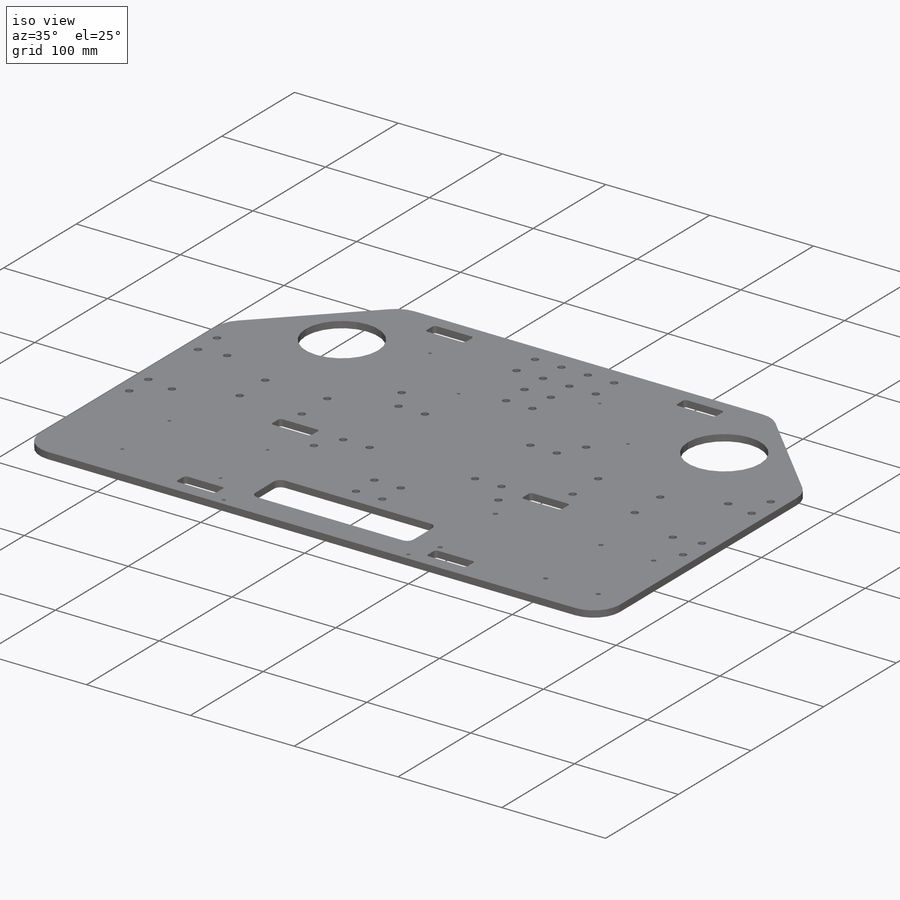
[diagram: iso view]
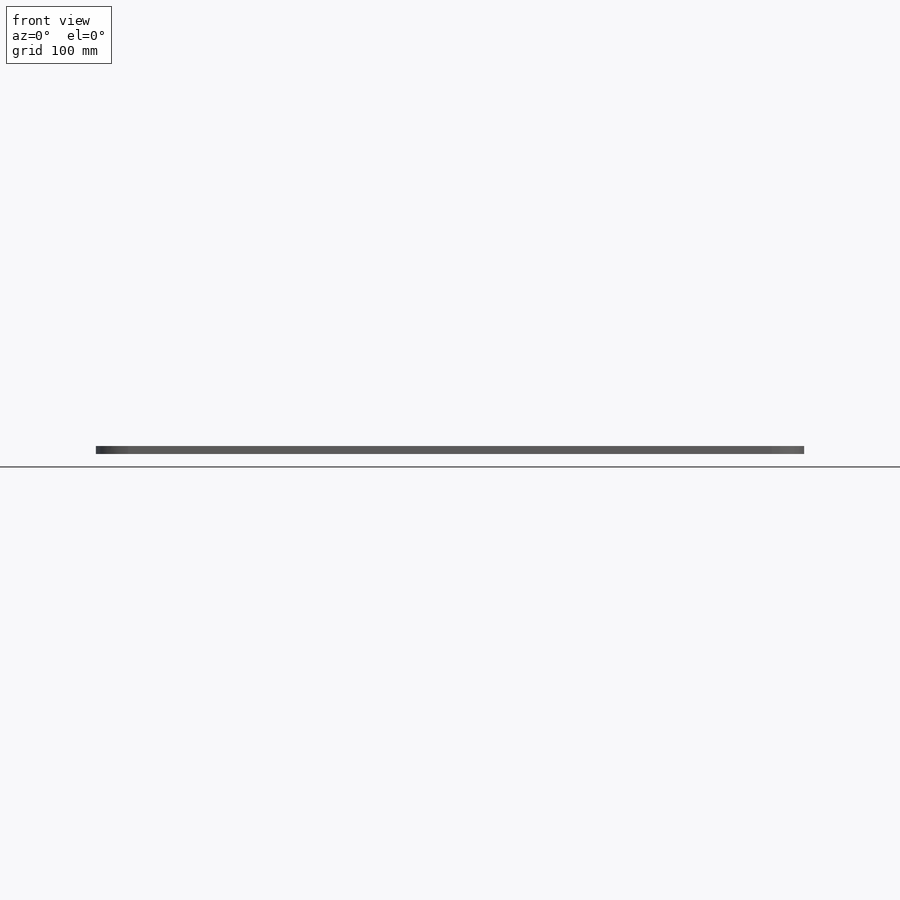
[diagram: front view]
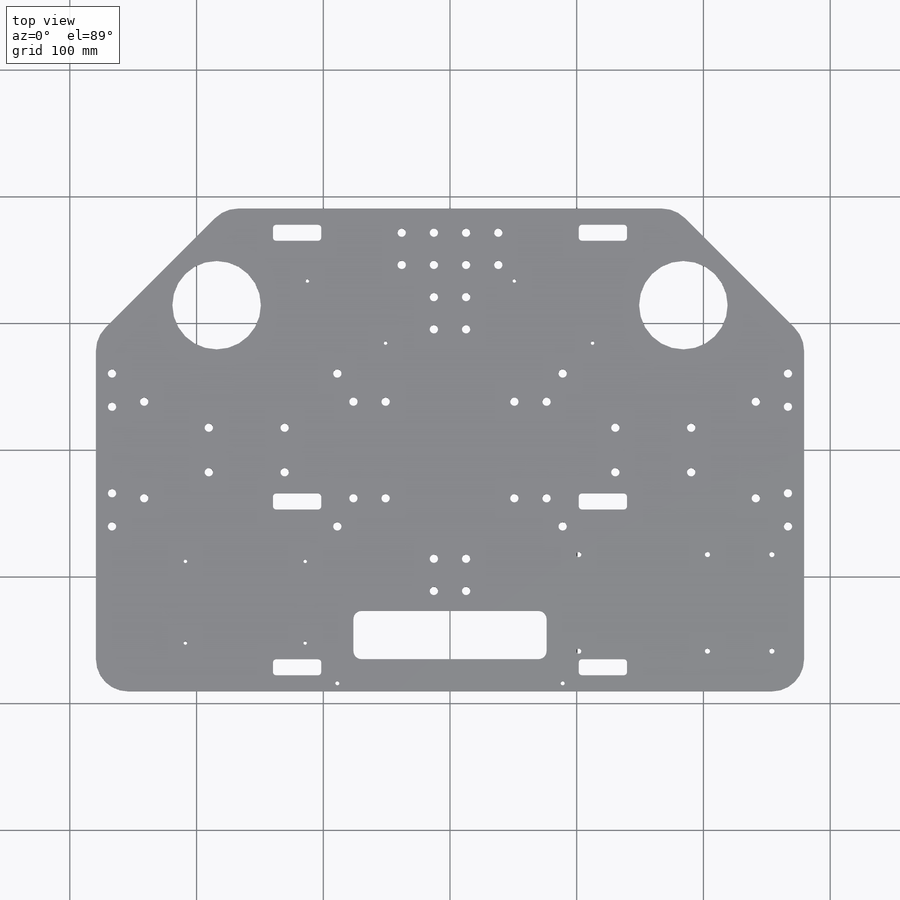
[diagram: top view]
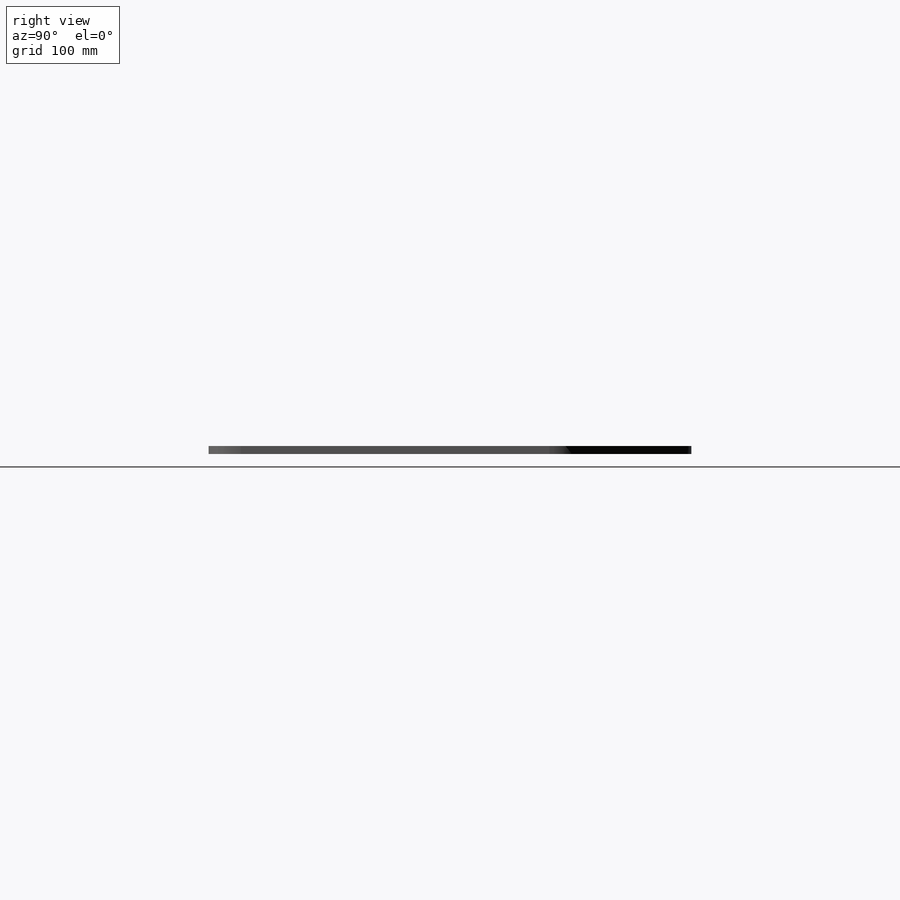
[diagram: right view]
SOLIDWORKS PART (.sldprt)
format: sldprt  version: not decoded by parser v0  size: 980,480 bytes
history: native  units: mm
features: sketch x10, cut_extrude x9, material x1, extrude x1, chamfer x1, fillet x1 (+13 scaffold rows collapsed)
feature tree (36):
  scaffold x13  (default folders/planes/origin — collapsed)
  material  "6061 Alloy"
  sketch  "Sketch1"  dims[c1.D1=558.8mm c1.D2=381.0mm c1.D3=101.6mm c1.D4=101.6mm c1.D5=101.6mm c1.D6=101.6mm c2.D2=381.0mm]
  extrude  "Extrude1"  Depth=6.35mm
  sketch  "Sketch2"  dims[D1=6.5278mm D4=6.5278mm D2=130.4671mm D3=17.5641mm D5=59.8424mm]
  cut_extrude  "Cut-Extrude1"  [1 undecoded]
  sketch  "Sketch3"  dims[D4=6.35mm D1=38.1mm D2=152.4mm D3=25.4mm]
  cut_extrude  "Cut-Extrude2"  [1 undecoded]
  sketch  "Sketch4"  dims[D1=6.5278mm D2=~34.13125mm D3=266.6492mm]
  cut_extrude  "Cut-Extrude3"  [1 undecoded]
  sketch  "Sketch5"  dims[D1=6.5278mm D2=6.5278mm D3=6.5278mm D4=12.7mm D5=177.8mm D6=60.325mm]
  cut_extrude  "Cut-Extrude4"  [1 undecoded]
  sketch  "Sketch6"  dims[c1.D1=4.0386mm c1.D2=4.0386mm c1.D3=4.0386mm c1.D4=4.0386mm c1.D5=4.0386mm c1.D6=4.0386mm c1.D12=2.7178mm c1.D13=2.7178mm c1.D14=2.7178mm c1.D15=2.7178mm c1.D20=2.7178mm c1.D21=2.7178mm c1.D26=2.7178mm c1.D7=101.6mm c1.D8=50.8mm c1.D9=76.2mm c1.D10=31.75mm c1.D11=25.4mm c1.D16=94.488mm c1.D17=64.4906mm c1.D18=38.1mm c1.D19=38.1mm c1.D22=61.722mm c1.D23=49.022mm c1.D24=50.8mm c1.D25=57.15mm c2.D26=57.15mm c2.D27=112.522mm]
  cut_extrude  "Cut-Extrude5"  [1 undecoded]
  sketch  "Sketch7"  dims[D2=6.5278mm D3=6.5278mm D8=~3.15976mm D11=6.5278mm D1=25.4mm D4=12.7mm D5=19.05mm D6=12.7mm D7=69.85mm D9=88.9mm D10=6.35mm D12=44.45mm D13=25.4mm D14=206.502mm D15=12.7mm D16=95.25mm D17=12.7mm]
  cut_extrude  "Cut-Extrude6"  [1 undecoded]
  sketch  "Sketch8"  dims[D3=2.54mm D1=38.1mm D2=12.7mm D4=101.6mm D5=12.7mm D6=146.05mm D7=142.24mm]
  cut_extrude  "Cut-Extrude7"  [1 undecoded]
  chamfer  "Chamfer1"  Distance=101.6mm Angle=45deg
  fillet  "Fillet1"  Radius=25.4mm
  sketch  "Sketch9"  dims[D1=69.85mm D2=184.15mm D3=76.2mm]
  cut_extrude  "Cut-Extrude8"  [1 undecoded]
  sketch  "Sketch10"  dims[c1.D1=6.5278mm c1.D4=6.5278mm c1.D5=6.5278mm c1.D6=6.5278mm c1.D7=6.5278mm c1.D2=38.1mm c1.D3=38.1mm c2.D4=76.2mm c2.D5=38.1mm c2.D8=50.8mm]
  cut_extrude  "Cut-Extrude9"  [1 undecoded]
decode coverage: 13 of 22 modeling features carry decoded parameters
note: ~ marks probable driven/reference dimensions
note: 9 parameter values undecoded
summary: no parameter record found for 9 features
note: suppression state not decoded; provenance and decode notes live in map.json
